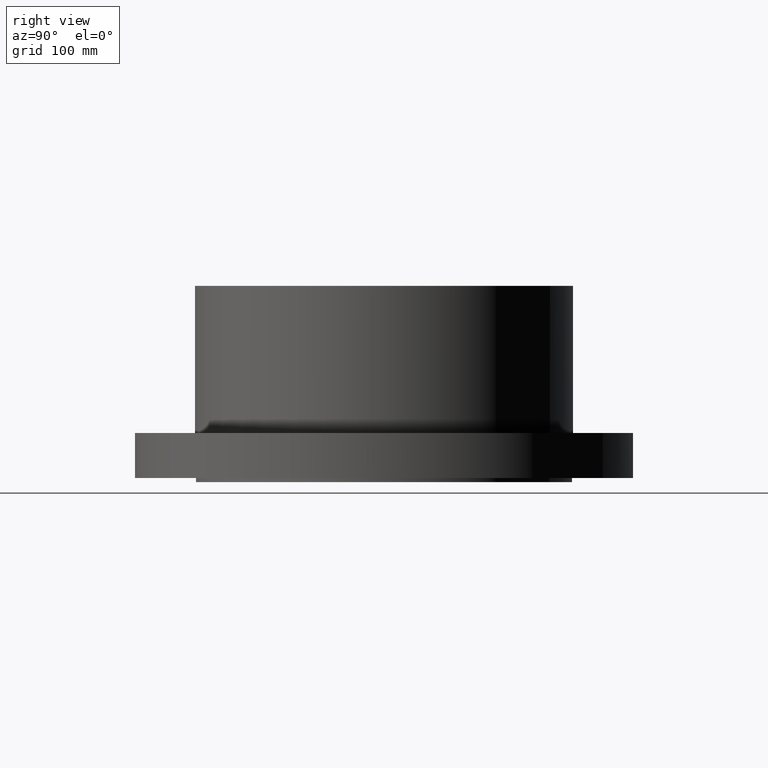
[diagram: clean part render]
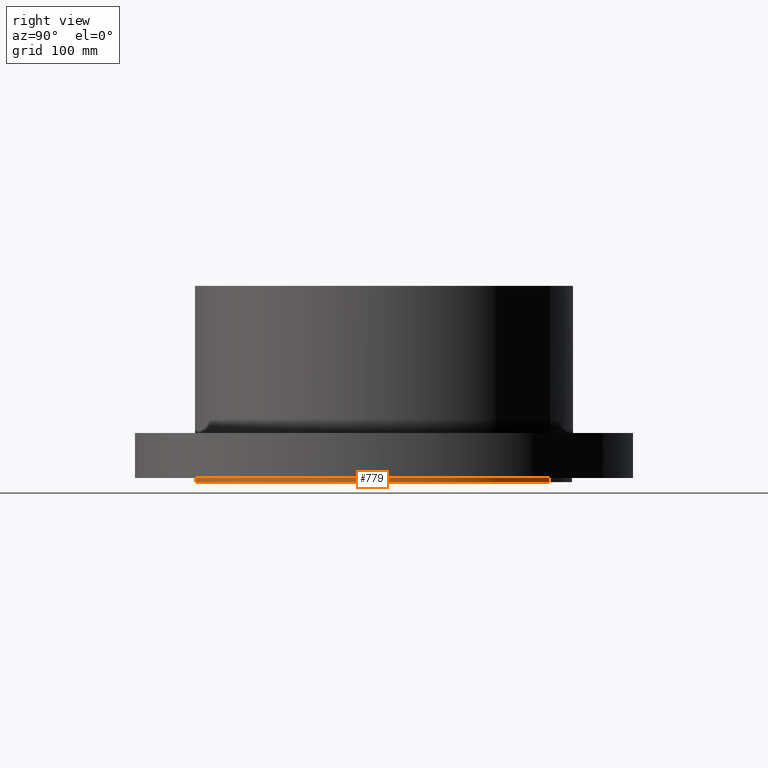
[diagram: same view with one face highlighted and labeled with its STEP entity id]
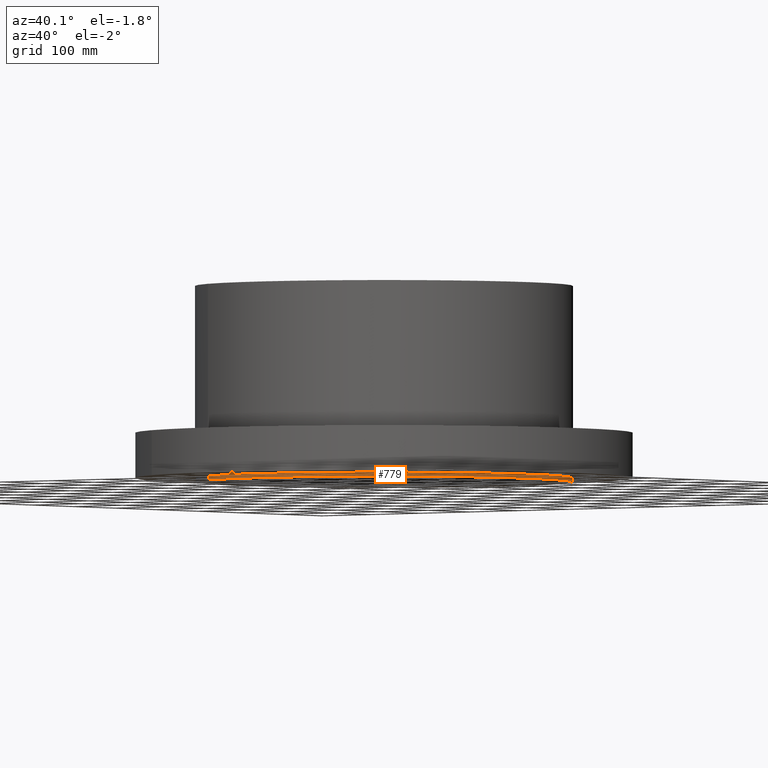
[diagram: same view with one face highlighted and labeled with its STEP entity id]
A machine part, right view. The second image highlights one B-rep face of the part: STEP entity #779.
A second angle (auxiliary view) of the same face is appended — the face is thin or edge-on in the first view.
In plain terms, the highlighted cylindrical surface (partial cylindrical patch) has radius 292.1 mm, axis along (0, 0, -1).
Its self-contained STEP definition (entity closure, byte-faithful):
#109=AXIS2_PLACEMENT_3D('Circle Axis2P3D',#107,#108,$) ;
#739=AXIS2_PLACEMENT_3D('Circle Axis2P3D',#737,#738,$) ;
#754=AXIS2_PLACEMENT_3D('Cylinder Axis2P3D',#751,#752,#753) ;
#107=CARTESIAN_POINT('Axis2P3D Location',(0.,0.,0.)) ;
#111=CARTESIAN_POINT('Vertex',(5.51339369397,10.0921994618,0.)) ;
#113=CARTESIAN_POINT('Vertex',(-5.51339369397,-10.0921994618,0.)) ;
#732=CARTESIAN_POINT('Vertex',(-5.51339369397,-10.0921994618,-0.250000000001)) ;
#734=CARTESIAN_POINT('Vertex',(5.51339369397,10.0921994618,-0.250000000001)) ;
#737=CARTESIAN_POINT('Axis2P3D Location',(0.,0.,-0.250000000001)) ;
#751=CARTESIAN_POINT('Axis2P3D Location',(0.,0.,5.75000000002)) ;
#756=CARTESIAN_POINT('Line Origine',(-5.51339369397,-10.0921994618,-0.125)) ;
#761=CARTESIAN_POINT('Line Origine',(5.51339369397,10.0921994618,-0.125)) ;
#108=DIRECTION('Axis2P3D Direction',(0.,0.,-0.0393700787402)) ;
#738=DIRECTION('Axis2P3D Direction',(0.,0.,-0.0393700787402)) ;
#752=DIRECTION('Axis2P3D Direction',(0.,0.,-0.0393700787402)) ;
#753=DIRECTION('Axis2P3D XDirection',(0.0188750212049,0.0345504945626,0.)) ;
#757=DIRECTION('Vector Direction',(0.,0.,-0.0393700787402)) ;
#762=DIRECTION('Vector Direction',(0.,0.,-0.0393700787402)) ;
#758=VECTOR('Line Direction',#757,0.0393700787402) ;
#763=VECTOR('Line Direction',#762,0.0393700787402) ;
#774=ORIENTED_EDGE('',*,*,#741,.F.) ;
#775=ORIENTED_EDGE('',*,*,#765,.T.) ;
#776=ORIENTED_EDGE('',*,*,#115,.T.) ;
#777=ORIENTED_EDGE('',*,*,#760,.F.) ;
#779=ADVANCED_FACE('PartBody',(#778),#755,.T.) ;
#110=CIRCLE('generated circle',#109,11.5) ;
#740=CIRCLE('generated circle',#739,11.5) ;
#755=CYLINDRICAL_SURFACE('generated cylinder',#754,11.5) ;
#115=EDGE_CURVE('',#112,#114,#110,.T.) ;
#741=EDGE_CURVE('',#735,#733,#740,.T.) ;
#760=EDGE_CURVE('',#733,#114,#759,.F.) ;
#765=EDGE_CURVE('',#735,#112,#764,.F.) ;
#773=EDGE_LOOP('',(#774,#775,#776,#777)) ;
#778=FACE_OUTER_BOUND('',#773,.T.) ;
#759=LINE('Line',#756,#758) ;
#764=LINE('Line',#761,#763) ;
#112=VERTEX_POINT('',#111) ;
#114=VERTEX_POINT('',#113) ;
#733=VERTEX_POINT('',#732) ;
#735=VERTEX_POINT('',#734) ;